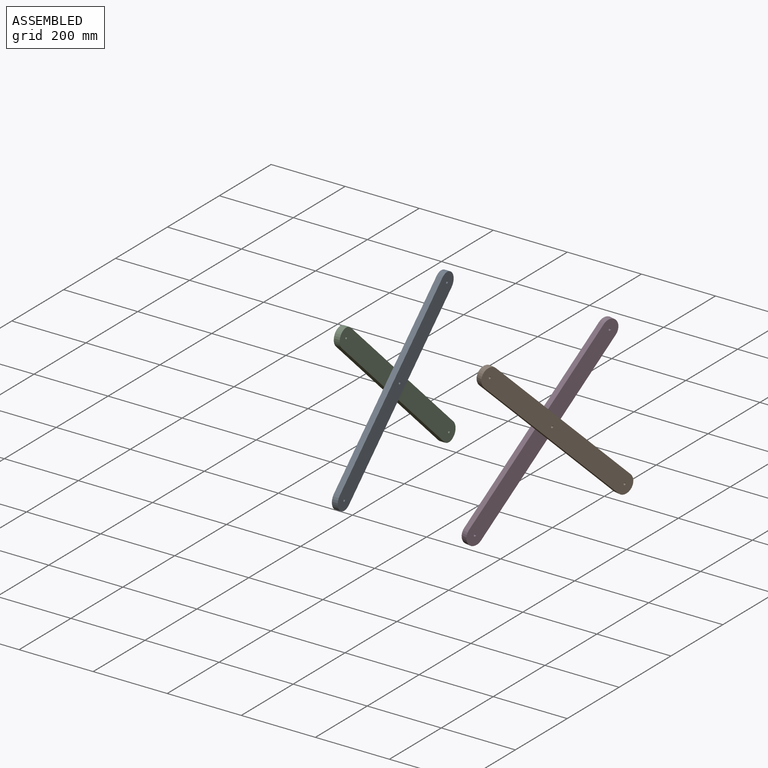
[diagram: assembled view]
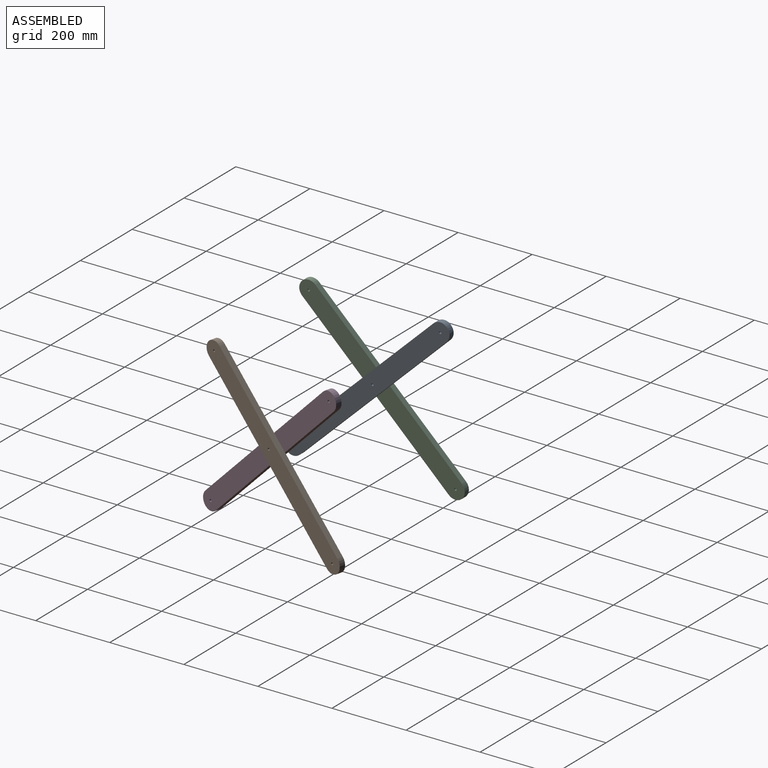
[diagram: assembled view, second angle]
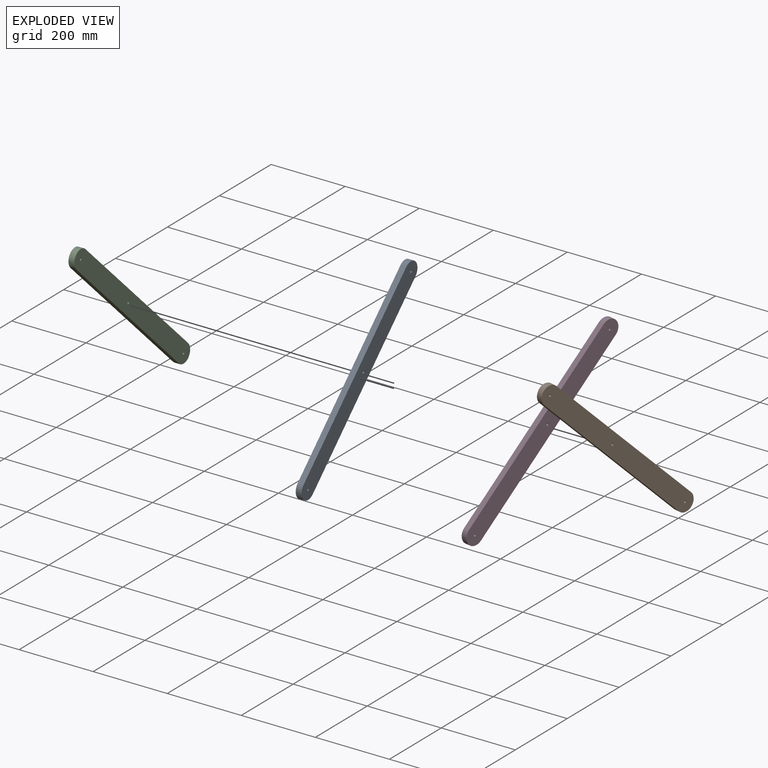
[diagram: exploded view]
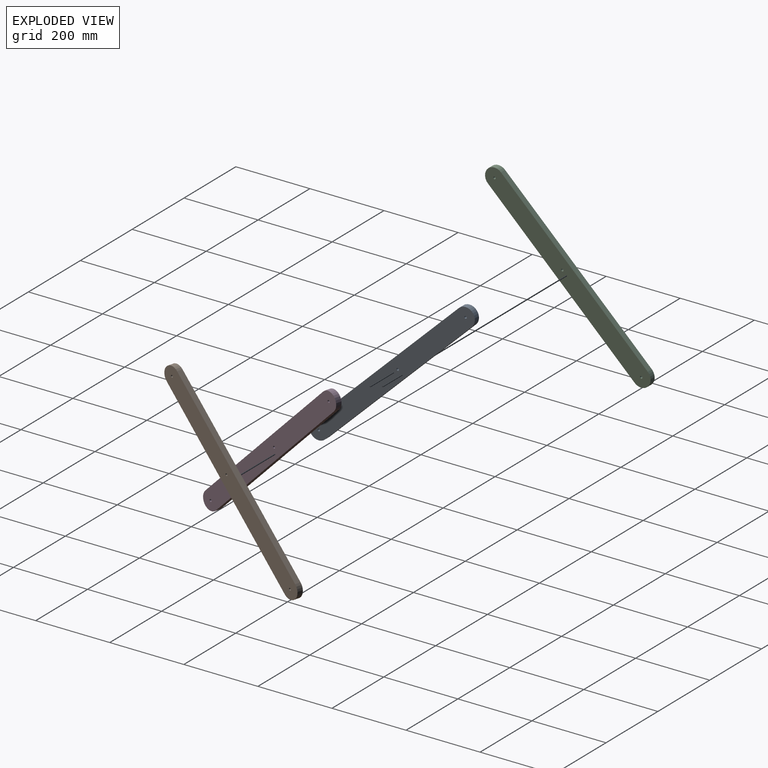
[diagram: exploded view, second angle]
ASSEMBLY  parts=4 mates=2
PART A: 9 faces, bbox 15.9x447.2x431.6 mm
  f0: plane 396.35x380.77mm, normal (0,-0.69,0.72), area 8725.2mm2, adj f1,f4,f7,f8
  f1: cylinder r=25.4mm len=43.72mm, axis (-1,0,0), area 1266.8mm2, adj f0,f2,f7,f8
  f2: plane 396.35x380.77mm, normal (0,0.69,-0.72), area 8725.2mm2, adj f1,f4,f7,f8
  f3: cylinder r=3.17mm len=15.88mm, axis (-1,0,0), area 316.7mm2, adj f7,f8
  f4: cylinder r=25.4mm len=43.72mm, axis (-1,0,0), area 1266.8mm2, adj f0,f2,f7,f8
  f5: cylinder r=3.17mm len=15.88mm, axis (-1,0,0), area 316.7mm2, adj f7,f8
  f6: cylinder r=3.17mm len=15.88mm, axis (-1,0,0), area 316.7mm2, adj f7,f8
  f7: plane 447.15x431.57mm, normal (1,0,0), area 29852.4mm2, adj f0,f1,f2,f3,f4,f5,f6
  f8: plane 447.15x431.57mm, normal (-1,0,0), area 29852.4mm2, adj f0,f1,f2,f3,f4,f5,f6
PART B: 9 faces, bbox 15.9x447.2x431.6 mm
  f0: plane 396.35x380.77mm, normal (0,-0.69,-0.72), area 8725.2mm2, adj f1,f4,f7,f8
  f1: cylinder r=25.4mm len=43.72mm, axis (-1,0,0), area 1266.8mm2, adj f0,f2,f7,f8
  f2: plane 396.35x380.77mm, normal (0,0.69,0.72), area 8725.2mm2, adj f1,f4,f7,f8
  f3: cylinder r=3.17mm len=15.88mm, axis (-1,0,0), area 316.7mm2, adj f7,f8
  f4: cylinder r=25.4mm len=43.72mm, axis (-1,0,0), area 1266.8mm2, adj f0,f2,f7,f8
  f5: cylinder r=3.17mm len=15.88mm, axis (-1,0,0), area 316.7mm2, adj f7,f8
  f6: cylinder r=3.17mm len=15.88mm, axis (-1,0,0), area 316.7mm2, adj f7,f8
  f7: plane 447.15x431.57mm, normal (1,0,0), area 29852.4mm2, adj f0,f1,f2,f3,f4,f5,f6
  f8: plane 447.15x431.57mm, normal (-1,0,0), area 29852.4mm2, adj f0,f1,f2,f3,f4,f5,f6
PART C: 9 faces, bbox 15.9x447.2x431.6 mm
  f0: plane 396.35x380.77mm, normal (0,-0.69,-0.72), area 8725.2mm2, adj f1,f4,f7,f8
  f1: cylinder r=25.4mm len=43.72mm, axis (1,0,0), area 1266.8mm2, adj f0,f2,f7,f8
  f2: plane 396.35x380.77mm, normal (0,0.69,0.72), area 8725.2mm2, adj f1,f4,f7,f8
  f3: cylinder r=3.17mm len=15.88mm, axis (1,0,0), area 316.7mm2, adj f7,f8
  f4: cylinder r=25.4mm len=43.72mm, axis (1,0,0), area 1266.8mm2, adj f0,f2,f7,f8
  f5: cylinder r=3.17mm len=15.88mm, axis (1,0,0), area 316.7mm2, adj f7,f8
  f6: cylinder r=3.17mm len=15.88mm, axis (1,0,0), area 316.7mm2, adj f7,f8
  f7: plane 447.15x431.57mm, normal (-1,0,0), area 29852.4mm2, adj f0,f1,f2,f3,f4,f5,f6
  f8: plane 447.15x431.57mm, normal (1,0,0), area 29852.4mm2, adj f0,f1,f2,f3,f4,f5,f6
PART D: 9 faces, bbox 15.9x447.2x431.6 mm
  f0: plane 396.35x380.77mm, normal (0,-0.69,0.72), area 8725.2mm2, adj f1,f4,f7,f8
  f1: cylinder r=25.4mm len=43.72mm, axis (1,0,0), area 1266.8mm2, adj f0,f2,f7,f8
  f2: plane 396.35x380.77mm, normal (0,0.69,-0.72), area 8725.2mm2, adj f1,f4,f7,f8
  f3: cylinder r=3.17mm len=15.88mm, axis (1,0,0), area 316.7mm2, adj f7,f8
  f4: cylinder r=25.4mm len=43.72mm, axis (1,0,0), area 1266.8mm2, adj f0,f2,f7,f8
  f5: cylinder r=3.17mm len=15.88mm, axis (1,0,0), area 316.7mm2, adj f7,f8
  f6: cylinder r=3.17mm len=15.88mm, axis (1,0,0), area 316.7mm2, adj f7,f8
  f7: plane 447.15x431.57mm, normal (-1,0,0), area 29852.4mm2, adj f0,f1,f2,f3,f4,f5,f6
  f8: plane 447.15x431.57mm, normal (1,0,0), area 29852.4mm2, adj f0,f1,f2,f3,f4,f5,f6
PLACE A at identity
PLACE B rot(axis=(0,0,-1),13.8deg) t=(-42.09,64.11,0)mm
PLACE C at identity
PLACE D rot(axis=(0,0,-1),13.8deg) t=(-42.09,64.11,0)mm
MATE revolute C.f6 <-> A.f3  axis (1,0,0) through (-228.6,0,0)mm
MATE revolute B.f6 <-> D.f3  axis (-0.97,0.24,0) through (179.91,9.62,0)mm
